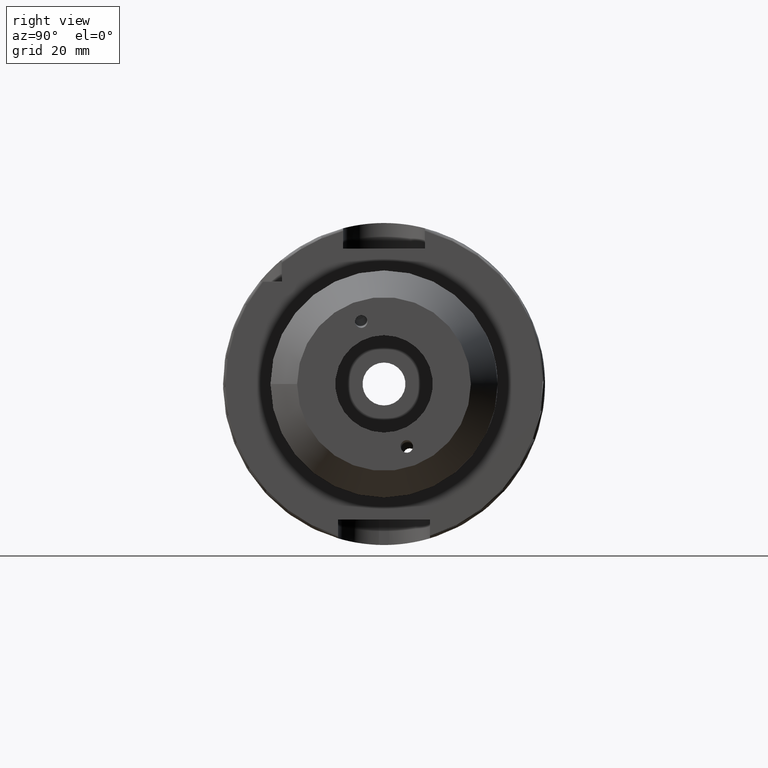
[diagram: clean part render]
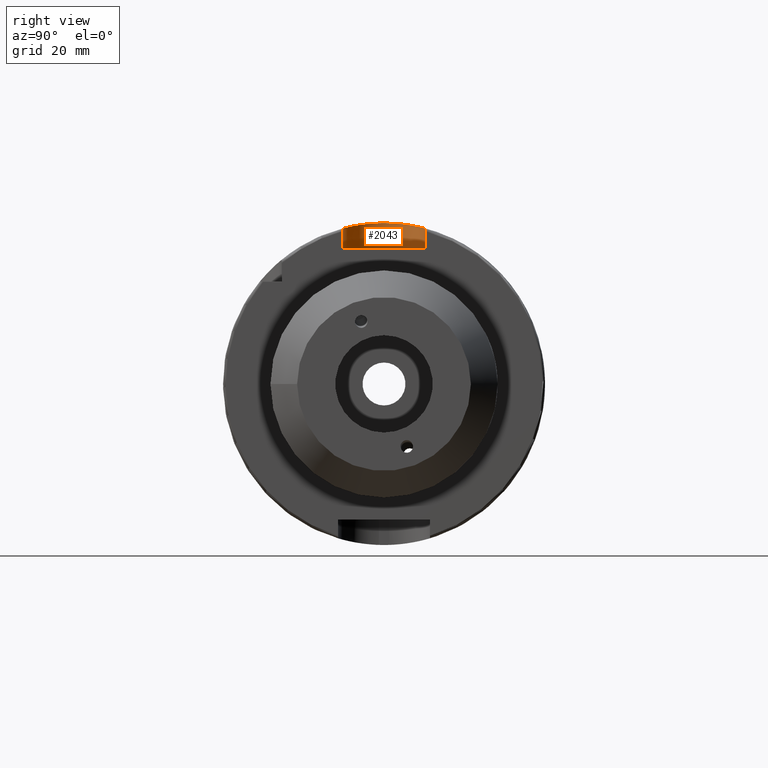
[diagram: same view with one face highlighted and labeled with its STEP entity id]
A machine part, right view. The second image highlights one B-rep face of the part: STEP entity #2043.
In plain terms, the highlighted cylindrical surface (partial cylindrical patch) has radius 8 mm, axis along (0, 0, 1).
Its self-contained STEP definition (entity closure, byte-faithful):
#166=B_SPLINE_CURVE_WITH_KNOTS('',3,(#4295,#4296,#4297,#4298,#4299,#4300,
#4301,#4302,#4303,#4304,#4305,#4306,#4307,#4308,#4309,#4310,#4311,#4312),
 .UNSPECIFIED.,.F.,.F.,(4,2,2,2,2,2,2,2,4),(0.,0.302805879979318,0.605611759958635,
0.908372461246501,1.21113316253437,1.51389386382223,1.8166545651101,2.11946044508942,
2.42226632506874),.UNSPECIFIED.);
#204=CYLINDRICAL_SURFACE('',#2262,8.);
#290=FACE_OUTER_BOUND('',#418,.T.);
#418=EDGE_LOOP('',(#1720,#1721,#1722,#1723));
#556=LINE('',#4287,#666);
#558=LINE('',#4315,#668);
#666=VECTOR('',#2747,10.);
#668=VECTOR('',#2753,10.);
#758=CIRCLE('',#2263,8.);
#976=VERTEX_POINT('',#4284);
#977=VERTEX_POINT('',#4286);
#979=VERTEX_POINT('',#4294);
#980=VERTEX_POINT('',#4313);
#1249=EDGE_CURVE('',#976,#977,#556,.T.);
#1252=EDGE_CURVE('',#977,#979,#166,.T.);
#1253=EDGE_CURVE('',#980,#976,#758,.T.);
#1254=EDGE_CURVE('',#980,#979,#558,.T.);
#1720=ORIENTED_EDGE('',*,*,#1252,.F.);
#1721=ORIENTED_EDGE('',*,*,#1249,.F.);
#1722=ORIENTED_EDGE('',*,*,#1253,.F.);
#1723=ORIENTED_EDGE('',*,*,#1254,.T.);
#2043=ADVANCED_FACE('',(#290),#204,.F.);
#2262=AXIS2_PLACEMENT_3D('',#4293,#2749,#2750);
#2263=AXIS2_PLACEMENT_3D('',#4314,#2751,#2752);
#2747=DIRECTION('',(0.,0.,1.));
#2749=DIRECTION('center_axis',(0.,0.,1.));
#2750=DIRECTION('ref_axis',(0.,1.,0.));
#2751=DIRECTION('center_axis',(0.,0.,1.));
#2752=DIRECTION('ref_axis',(0.,1.,0.));
#2753=DIRECTION('',(0.,0.,1.));
#4284=CARTESIAN_POINT('',(13.,-8.,26.5));
#4286=CARTESIAN_POINT('',(13.,-8.,30.4671954731642));
#4287=CARTESIAN_POINT('',(13.,-8.,26.5));
#4293=CARTESIAN_POINT('Origin',(13.,0.,26.5));
#4294=CARTESIAN_POINT('',(13.,8.,30.4671954731642));
#4295=CARTESIAN_POINT('Ctrl Pts',(13.,-8.,30.4671954731643));
#4296=CARTESIAN_POINT('Ctrl Pts',(11.9906470667356,-8.,30.4671954731643));
#4297=CARTESIAN_POINT('Ctrl Pts',(10.9172075930168,-7.79737202490167,30.5225803085525));
#4298=CARTESIAN_POINT('Ctrl Pts',(8.94758399331801,-6.97961067526075,30.719895002943));
#4299=CARTESIAN_POINT('Ctrl Pts',(8.05099322370438,-6.36470172268915,30.8586830127239));
#4300=CARTESIAN_POINT('Ctrl Pts',(6.63540388828045,-4.94911238726521,31.1170994373341));
#4301=CARTESIAN_POINT('Ctrl Pts',(6.02041263015313,-4.05247770930662,31.2539072689014));
#4302=CARTESIAN_POINT('Ctrl Pts',(5.20259114887399,-2.08269813865027,31.4466478906396));
#4303=CARTESIAN_POINT('Ctrl Pts',(5.,-1.00920233762622,31.5));
#4304=CARTESIAN_POINT('Ctrl Pts',(5.,1.00920233762622,31.5));
#4305=CARTESIAN_POINT('Ctrl Pts',(5.20259114887399,2.08269813865027,31.4466478906396));
#4306=CARTESIAN_POINT('Ctrl Pts',(6.02041263015313,4.05247770930662,31.2539072689014));
#4307=CARTESIAN_POINT('Ctrl Pts',(6.63540388828045,4.94911238726521,31.1170994373341));
#4308=CARTESIAN_POINT('Ctrl Pts',(8.05099322370439,6.36470172268915,30.8586830127239));
#4309=CARTESIAN_POINT('Ctrl Pts',(8.94758399331801,6.97961067526075,30.719895002943));
#4310=CARTESIAN_POINT('Ctrl Pts',(10.9172075930168,7.79737202490167,30.5225803085525));
#4311=CARTESIAN_POINT('Ctrl Pts',(11.9906470667356,8.,30.4671954731643));
#4312=CARTESIAN_POINT('Ctrl Pts',(13.,8.,30.4671954731643));
#4313=CARTESIAN_POINT('',(13.,8.,26.5));
#4314=CARTESIAN_POINT('Origin',(13.,0.,26.5));
#4315=CARTESIAN_POINT('',(13.,8.,26.5));